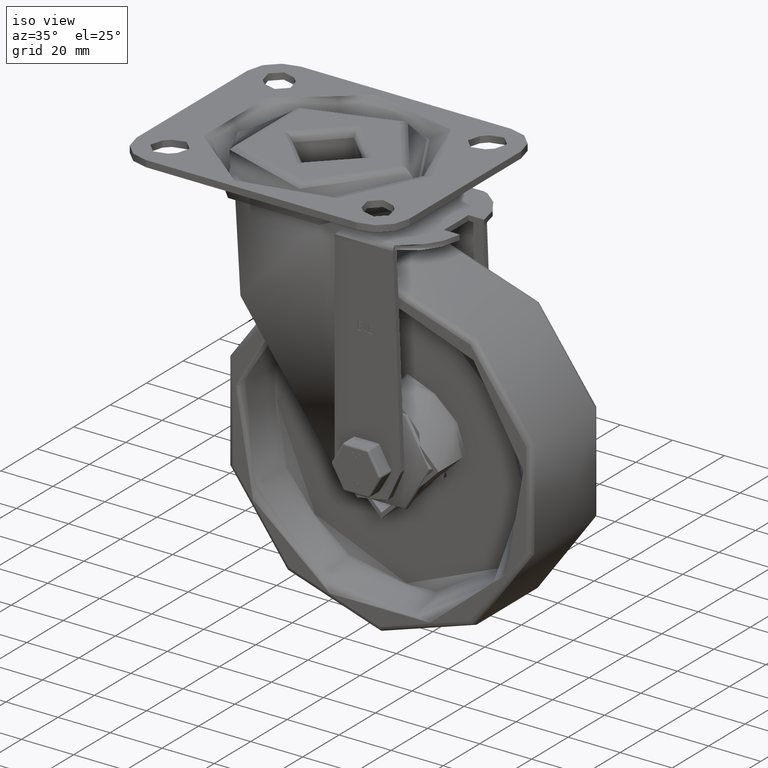
[diagram: clean part render]
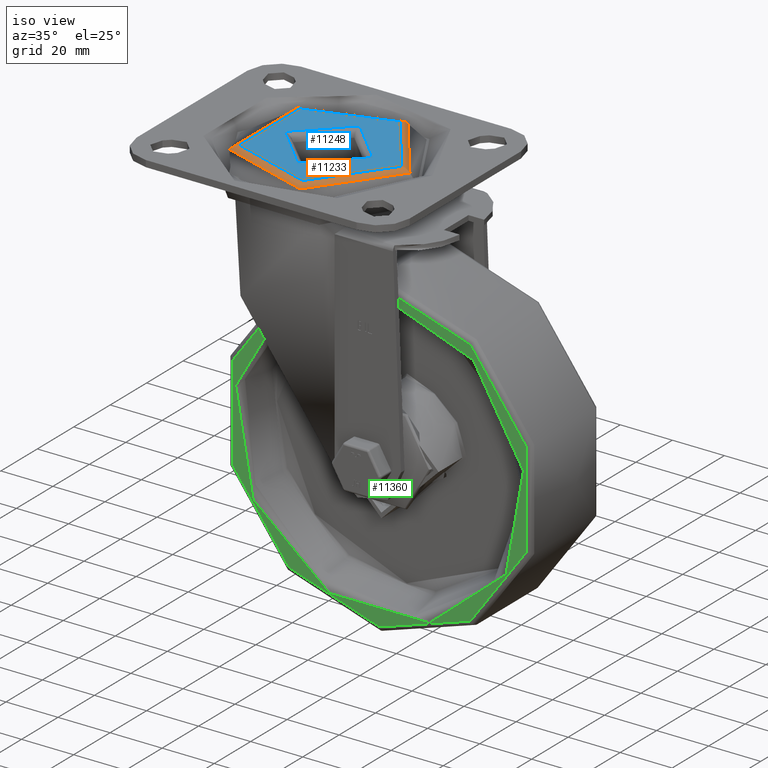
[diagram: same view with three faces highlighted in distinct colors, each labeled with its STEP entity id]
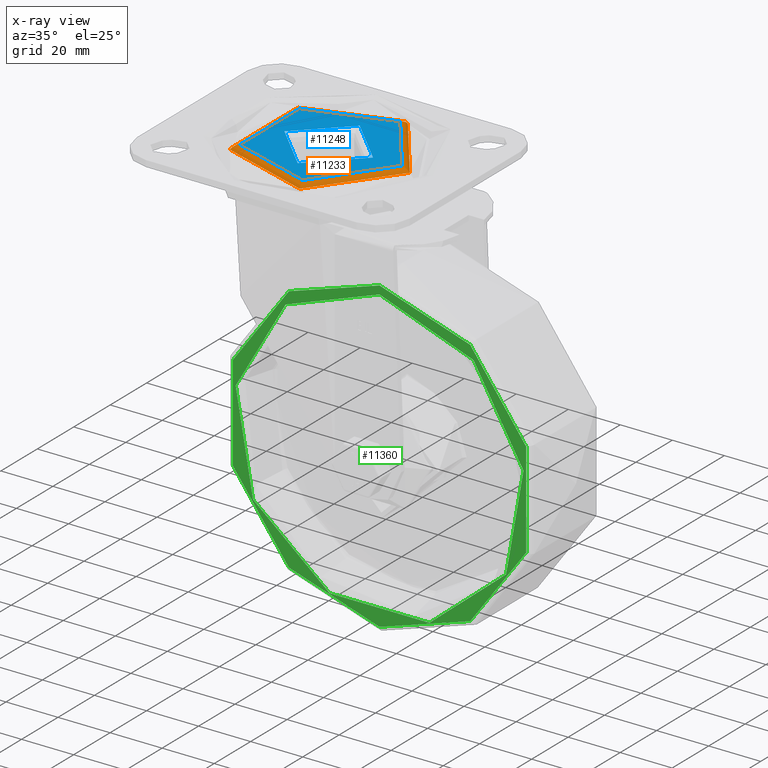
[diagram: x-ray of the same camera — body ghosted, the three highlighted faces saturated]
A machine part, iso view with three faces highlighted in distinct colors.
The next image is the same camera in x-ray (body ghosted, the three faces saturated) — at least one of them is partly hidden behind the body in this view.
Their STEP definitions:

[orange] entity #11233 — the highlighted toroidal blend (fillet) surface has major radius 28.0791 mm and minor (blend) radius 3.9967 mm.
#1381=TOROIDAL_SURFACE('',#12128,28.0790627287701,3.99674981698405);
#1419=FACE_OUTER_BOUND('',#2118,.T.);
#2118=EDGE_LOOP('',(#7720,#7721,#7722,#7723));
#4460=CIRCLE('',#12129,31.2000000000001);
#4461=CIRCLE('',#12130,3.99674981698405);
#4462=CIRCLE('',#12131,28.0790627287701);
#4912=VERTEX_POINT('',#15937);
#4913=VERTEX_POINT('',#15939);
#6028=EDGE_CURVE('',#4912,#4912,#4460,.T.);
#6029=EDGE_CURVE('',#4912,#4913,#4461,.T.);
#6030=EDGE_CURVE('',#4913,#4913,#4462,.T.);
#7720=ORIENTED_EDGE('',*,*,#6028,.F.);
#7721=ORIENTED_EDGE('',*,*,#6029,.T.);
#7722=ORIENTED_EDGE('',*,*,#6030,.F.);
#7723=ORIENTED_EDGE('',*,*,#6029,.F.);
#11233=ADVANCED_FACE('',(#1419),#1381,.T.);
#12128=AXIS2_PLACEMENT_3D('',#15936,#13189,#13190);
#12129=AXIS2_PLACEMENT_3D('',#15938,#13191,#13192);
#12130=AXIS2_PLACEMENT_3D('',#15940,#13193,#13194);
#12131=AXIS2_PLACEMENT_3D('',#15941,#13195,#13196);
#13189=DIRECTION('center_axis',(6.53866449118381E-17,0.,-1.));
#13190=DIRECTION('ref_axis',(-1.,0.,-6.23024418001784E-17));
#13191=DIRECTION('center_axis',(6.53866449118381E-17,0.,-1.));
#13192=DIRECTION('ref_axis',(-1.,0.,-6.53866449118381E-17));
#13193=DIRECTION('center_axis',(-1.22464679914735E-16,-1.,-8.00755453982671E-33));
#13194=DIRECTION('ref_axis',(1.,-1.22464679914735E-16,6.92249353335316E-17));
#13195=DIRECTION('center_axis',(0.,0.,1.));
#13196=DIRECTION('ref_axis',(1.,0.,0.));
#15936=CARTESIAN_POINT('Origin',(0.,0.,-1.49674981698399));
#15937=CARTESIAN_POINT('',(31.2000000000001,-3.82089801333975E-15,1.));
#15938=CARTESIAN_POINT('Origin',(-6.51824679655219E-17,0.,1.));
#15939=CARTESIAN_POINT('',(28.0790627287701,-3.4386934293846E-15,2.5));
#15940=CARTESIAN_POINT('Origin',(28.0790627287701,-3.4386934293846E-15,
-1.49674981698399));
#15941=CARTESIAN_POINT('Origin',(0.,0.,2.5));

[blue] entity #11248 — the highlighted planar face has unit normal (0, 0, 1).
#967=FACE_BOUND('',#2147,.T.);
#1106=PLANE('',#12164);
#1434=FACE_OUTER_BOUND('',#2146,.T.);
#2146=EDGE_LOOP('',(#7816));
#2147=EDGE_LOOP('',(#7817));
#4462=CIRCLE('',#12131,28.0790627287701);
#4467=CIRCLE('',#12139,17.);
#4913=VERTEX_POINT('',#15939);
#4917=VERTEX_POINT('',#15953);
#6030=EDGE_CURVE('',#4913,#4913,#4462,.T.);
#6037=EDGE_CURVE('',#4917,#4917,#4467,.T.);
#7816=ORIENTED_EDGE('',*,*,#6030,.T.);
#7817=ORIENTED_EDGE('',*,*,#6037,.F.);
#11248=ADVANCED_FACE('',(#1434,#967),#1106,.T.);
#12131=AXIS2_PLACEMENT_3D('',#15941,#13195,#13196);
#12139=AXIS2_PLACEMENT_3D('',#15955,#13213,#13214);
#12164=AXIS2_PLACEMENT_3D('',#16019,#13291,#13292);
#13195=DIRECTION('center_axis',(0.,0.,1.));
#13196=DIRECTION('ref_axis',(1.,0.,0.));
#13213=DIRECTION('center_axis',(0.,0.,1.));
#13214=DIRECTION('ref_axis',(-1.,1.22464679914735E-16,0.));
#13291=DIRECTION('center_axis',(0.,0.,1.));
#13292=DIRECTION('ref_axis',(1.,0.,0.));
#15939=CARTESIAN_POINT('',(28.0790627287701,-3.4386934293846E-15,2.5));
#15941=CARTESIAN_POINT('Origin',(0.,0.,2.5));
#15953=CARTESIAN_POINT('',(-17.,2.0818995585505E-15,2.5));
#15955=CARTESIAN_POINT('Origin',(0.,0.,2.5));
#16019=CARTESIAN_POINT('Origin',(0.,0.,2.5));

[green] entity #11360 — the highlighted planar face has unit normal (0, -1, 0).
#989=FACE_BOUND('',#2281,.T.);
#1163=PLANE('',#12354);
#1546=FACE_OUTER_BOUND('',#2280,.T.);
#2280=EDGE_LOOP('',(#8340));
#2281=EDGE_LOOP('',(#8341));
#4527=CIRCLE('',#12299,59.2870550870224);
#4528=CIRCLE('',#12301,56.1396078054371);
#5056=VERTEX_POINT('',#17141);
#5057=VERTEX_POINT('',#17145);
#6274=EDGE_CURVE('',#5056,#5056,#4527,.T.);
#6275=EDGE_CURVE('',#5057,#5057,#4528,.T.);
#8340=ORIENTED_EDGE('',*,*,#6274,.F.);
#8341=ORIENTED_EDGE('',*,*,#6275,.T.);
#11360=ADVANCED_FACE('',(#1546,#989),#1163,.T.);
#12299=AXIS2_PLACEMENT_3D('',#17143,#13664,#13665);
#12301=AXIS2_PLACEMENT_3D('',#17146,#13668,#13669);
#12354=AXIS2_PLACEMENT_3D('',#17234,#13783,#13784);
#13664=DIRECTION('center_axis',(-3.71352796603441E-15,1.,0.));
#13665=DIRECTION('ref_axis',(-1.,-3.71352796603441E-15,0.));
#13668=DIRECTION('center_axis',(-3.71352796603441E-15,1.,0.));
#13669=DIRECTION('ref_axis',(-1.,-3.71352796603441E-15,0.));
#13783=DIRECTION('center_axis',(2.61122294181614E-15,-1.,0.));
#13784=DIRECTION('ref_axis',(1.,2.61122294181614E-15,0.));
#17141=CARTESIAN_POINT('',(8.6369178451817E-14,-18.5,59.2870550870224));
#17143=CARTESIAN_POINT('Origin',(7.91086082274974E-14,-18.5,0.));
#17145=CARTESIAN_POINT('',(8.5983727327929E-14,-18.5,56.1396078054371));
#17146=CARTESIAN_POINT('Origin',(7.91086082274974E-14,-18.5,0.));
#17234=CARTESIAN_POINT('Origin',(-57.7133314462297,-18.5000000000002,0.));